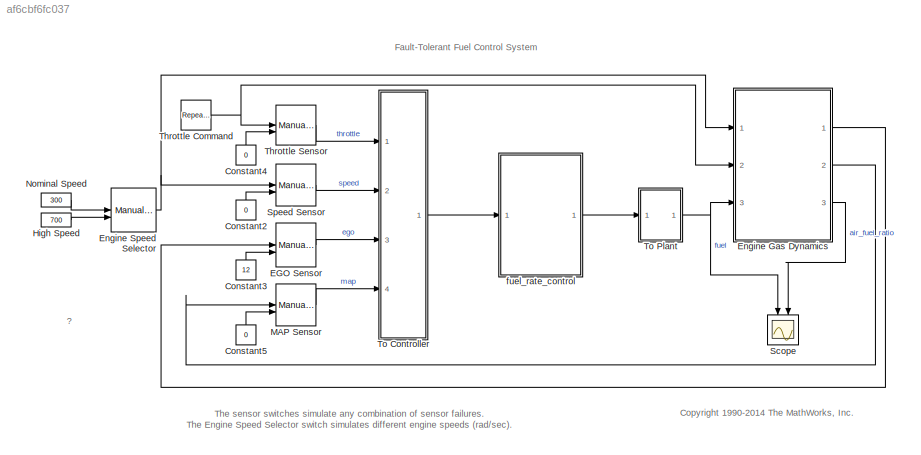
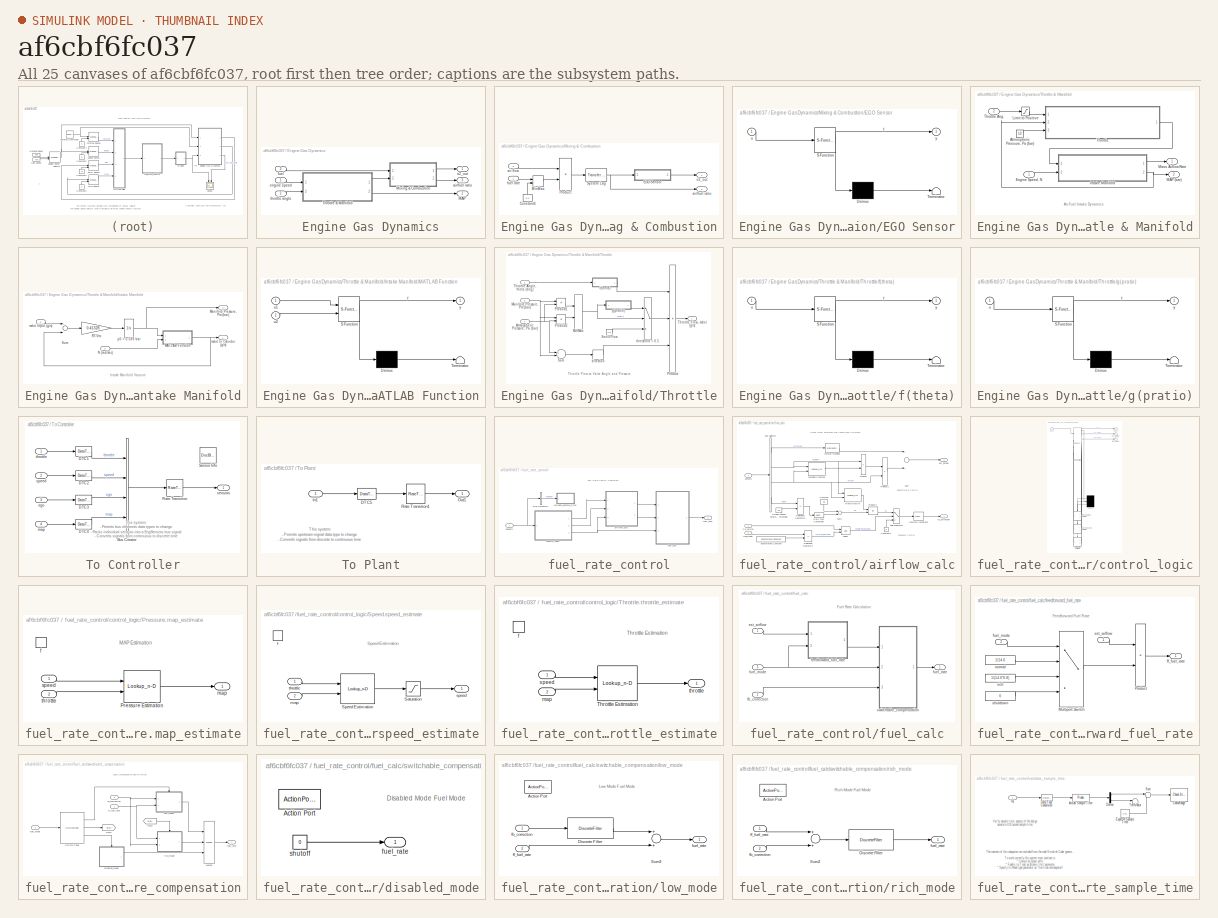
[diagram: thumbnail index - all 25 canvases of the model, root first then tree order]
MODEL slx_af6cbf6fc037
KIND model
CONFIG AbsTol = 1e-6
CONFIG FixedStep = 0.001
CONFIG MaxStep = auto
CONFIG MinStep = auto
CONFIG PostLoadFcn = sldemo_fuelsys_data(bdroot,'initialize_data','orig','float');
CONFIG RelTol = 1e-5
CONFIG SampleTimeConstraint = Unconstrained
CONFIG Solver = ode3
CONFIG SolverMode = SingleTasking
CONFIG SolverName = ode3
CONFIG StartTime = 0.0
CONFIG StopTime = 2000
WORKSPACE source: MAT-file member
WORKSPACE PressEst = [0.806253176324 0.553142316929 0.37151500209 0.277667903103 0.220198954207 0.181288665766 0.153200000489 0.115431020872 0.0913067476324 0.0746519188607 0.0625231108324 0.0533383634277 ... (306 elements, 18x17)]
WORKSPACE PressVect = [0.05 0.1 0.15 0.2 0.25 0.3 0.35 0.4 0.45 0.5 0.55 0.6 ... (19 elements, 1x19)]
BLOCK [Constant] Constant2
  Value = 0
BLOCK [Constant] Constant3
  Value = 12
BLOCK [Constant] Constant4
  Value = 0
BLOCK [Constant] Constant5
  Value = 0
BLOCK [ManualSwitch] EGO Sensor
BLOCK [SubSystem] Engine Gas Dynamics
  Ports = [3, 3]
  RequestExecContextInheritance = off
BLOCK [Outport] Engine Gas Dynamics/MAP
  IconDisplay = Port number
  Port = 2
BLOCK [SubSystem] Engine Gas Dynamics/Mixing & Combustion
  Ports = [2, 2]
  RequestExecContextInheritance = off
BLOCK [Constant] Engine Gas Dynamics/Mixing & Combustion/Constant4
  Value = 0.1
BLOCK [SubSystem] Engine Gas Dynamics/Mixing & Combustion/EGO Sensor
  ErrorFcn = Stateflow.Translate.translate
  PermitHierarchicalResolution = ExplicitOnly
  Ports = [1, 1]
  RequestExecContextInheritance = off
  SFBlockType = MATLAB Function
  TreatAsAtomicUnit = on
BLOCK [Demux] Engine Gas Dynamics/Mixing & Combustion/EGO Sensor/ Demux 
  Outputs = 1
  Ports = [1, 1]
BLOCK [S-Function] Engine Gas Dynamics/Mixing & Combustion/EGO Sensor/ SFunction 
  EnableBusSupport = on
  FunctionName = sf_sfun
  PortCounts = [1 2]
  Ports = [1, 2]
  Tag = Stateflow S-Function fuelsys 5
BLOCK [Terminator] Engine Gas Dynamics/Mixing & Combustion/EGO Sensor/ Terminator 
BLOCK [Inport] Engine Gas Dynamics/Mixing & Combustion/EGO Sensor/u
  IconDisplay = Port number
BLOCK [Outport] Engine Gas Dynamics/Mixing & Combustion/EGO Sensor/y
  IconDisplay = Port number
BLOCK [MinMax] Engine Gas Dynamics/Mixing & Combustion/MinMax
  Function = max
  Inputs = 2
  Ports = [2, 1]
BLOCK [Product] Engine Gas Dynamics/Mixing & Combustion/Product
  Inputs = */
  Ports = [2, 1]
BLOCK [Reference] Engine Gas Dynamics/Mixing & Combustion/System Lag  REF=simulink_extras/Additional
Linear/Transfer Fcn
(with initial outputs)
  D = [1 3]
  N = 3
  Ports = [1, 1]
  SourceBlock = simulink_extras/Additional\nLinear/Transfer Fcn\n(with initial outputs)
  SourceType = Transfer Function with Initial Outputs
  U0 = 1/14.6
  Y0 = 1/14.6
BLOCK [Inport] Engine Gas Dynamics/Mixing & Combustion/air flow
  IconDisplay = Port number
  Port = 2
BLOCK [Outport] Engine Gas Dynamics/Mixing & Combustion/air//fuel ratio
  IconDisplay = Port number
  Port = 2
BLOCK [Inport] Engine Gas Dynamics/Mixing & Combustion/fuel rate
  IconDisplay = Port number
BLOCK [Outport] Engine Gas Dynamics/Mixing & Combustion/o2_out
  IconDisplay = Port number
BLOCK [SubSystem] Engine Gas Dynamics/Throttle & Manifold
  Ports = [2, 2]
  RequestExecContextInheritance = off
BLOCK [Constant] Engine Gas Dynamics/Throttle & Manifold/Atmospheric Pressure, Pa (bar)
  Value = 1.0
BLOCK [Inport] Engine Gas Dynamics/Throttle & Manifold/Engine Speed, N
  IconDisplay = Port number
BLOCK [SubSystem] Engine Gas Dynamics/Throttle & Manifold/Intake Manifold
  Ports = [2, 2]
  RequestExecContextInheritance = off
BLOCK [SubSystem] Engine Gas Dynamics/Throttle & Manifold/Intake Manifold/MATLAB Function
  ErrorFcn = Stateflow.Translate.translate
  PermitHierarchicalResolution = ExplicitOnly
  Ports = [2, 1]
  RequestExecContextInheritance = off
  SFBlockType = MATLAB Function
  TreatAsAtomicUnit = on
BLOCK [Demux] Engine Gas Dynamics/Throttle & Manifold/Intake Manifold/MATLAB Function/ Demux 
  Outputs = 1
  Ports = [1, 1]
BLOCK [S-Function] Engine Gas Dynamics/Throttle & Manifold/Intake Manifold/MATLAB Function/ SFunction 
  EnableBusSupport = on
  FunctionName = sf_sfun
  PortCounts = [2 2]
  Ports = [2, 2]
  Tag = Stateflow S-Function fuelsys 4
BLOCK [Terminator] Engine Gas Dynamics/Throttle & Manifold/Intake Manifold/MATLAB Function/ Terminator 
BLOCK [Inport] Engine Gas Dynamics/Throttle & Manifold/Intake Manifold/MATLAB Function/u1
  IconDisplay = Port number
BLOCK [Inport] Engine Gas Dynamics/Throttle & Manifold/Intake Manifold/MATLAB Function/u2
  IconDisplay = Port number
  Port = 2
BLOCK [Outport] Engine Gas Dynamics/Throttle & Manifold/Intake Manifold/MATLAB Function/y
  IconDisplay = Port number
BLOCK [Outport] Engine Gas Dynamics/Throttle & Manifold/Intake Manifold/Manifold Pressure, Pm (bar)
  IconDisplay = Port number
  Port = 2
BLOCK [Inport] Engine Gas Dynamics/Throttle & Manifold/Intake Manifold/N (rad//sec)
  IconDisplay = Port number
  Port = 2
BLOCK [Gain] Engine Gas Dynamics/Throttle & Manifold/Intake Manifold/RT//Vm
  Gain = 0.41328
BLOCK [Sum] Engine Gas Dynamics/Throttle & Manifold/Intake Manifold/Sum
  Inputs = +-
  Ports = [2, 1]
BLOCK [Inport] Engine Gas Dynamics/Throttle & Manifold/Intake Manifold/mdot Input (g//s)
  IconDisplay = Port number
BLOCK [Outport] Engine Gas Dynamics/Throttle & Manifold/Intake Manifold/mdot to Cylinder (g//s)
  IconDisplay = Port number
BLOCK [Integrator] Engine Gas Dynamics/Throttle & Manifold/Intake Manifold/p0 = 0.589 bar
  InitialCondition = .589
  Ports = [1, 1]
BLOCK [Saturate] Engine Gas Dynamics/Throttle & Manifold/Limit to Positive
  InputPortMap = u0
  LowerLimit = 0
  Ports = [1, 1]
  UpperLimit = inf
BLOCK [Outport] Engine Gas Dynamics/Throttle & Manifold/MAP (bar)
  IconDisplay = Port number
  Port = 2
BLOCK [Outport] Engine Gas Dynamics/Throttle & Manifold/Mass Airflow Rate
  IconDisplay = Port number
BLOCK [SubSystem] Engine Gas Dynamics/Throttle & Manifold/Throttle
  Ports = [3, 1]
  RequestExecContextInheritance = off
BLOCK [Inport] Engine Gas Dynamics/Throttle & Manifold/Throttle Ang.
  IconDisplay = Port number
  Port = 2
BLOCK [Inport] Engine Gas Dynamics/Throttle & Manifold/Throttle/Atmospheric Pressure, Pa (bar) 
  IconDisplay = Port number
  Port = 3
BLOCK [Inport] Engine Gas Dynamics/Throttle & Manifold/Throttle/Manifold Pressure, Pm (bar)
  IconDisplay = Port number
  Port = 2
BLOCK [MinMax] Engine Gas Dynamics/Throttle & Manifold/Throttle/MinMax
  Inputs = 2
  Ports = [2, 1]
BLOCK [Product] Engine Gas Dynamics/Throttle & Manifold/Throttle/Product
  Inputs = 3
  Ports = [3, 1]
BLOCK [Product] Engine Gas Dynamics/Throttle & Manifold/Throttle/Product1
  Inputs = */
  Ports = [2, 1]
BLOCK [Product] Engine Gas Dynamics/Throttle & Manifold/Throttle/Product2
  Inputs = /*
  Ports = [2, 1]
BLOCK [Constant] Engine Gas Dynamics/Throttle & Manifold/Throttle/Sonic Flow 
  Value = 1.0
BLOCK [Sum] Engine Gas Dynamics/Throttle & Manifold/Throttle/Sum
  Inputs = +-
  Ports = [2, 1]
BLOCK [Inport] Engine Gas Dynamics/Throttle & Manifold/Throttle/Throttle Angle, theta (deg)
  IconDisplay = Port number
BLOCK [Outport] Engine Gas Dynamics/Throttle & Manifold/Throttle/Throttle Flow, mdot (g//s)
  IconDisplay = Port number
BLOCK [Signum] Engine Gas Dynamics/Throttle & Manifold/Throttle/direction
BLOCK [SubSystem] Engine Gas Dynamics/Throttle & Manifold/Throttle/f(theta)
  ErrorFcn = Stateflow.Translate.translate
  PermitHierarchicalResolution = ExplicitOnly
  Ports = [1, 1]
  RequestExecContextInheritance = off
  SFBlockType = MATLAB Function
  TreatAsAtomicUnit = on
BLOCK [Demux] Engine Gas Dynamics/Throttle & Manifold/Throttle/f(theta)/ Demux 
  Outputs = 1
  Ports = [1, 1]
BLOCK [S-Function] Engine Gas Dynamics/Throttle & Manifold/Throttle/f(theta)/ SFunction 
  EnableBusSupport = on
  FunctionName = sf_sfun
  PortCounts = [1 2]
  Ports = [1, 2]
  Tag = Stateflow S-Function fuelsys 2
BLOCK [Terminator] Engine Gas Dynamics/Throttle & Manifold/Throttle/f(theta)/ Terminator 
BLOCK [Inport] Engine Gas Dynamics/Throttle & Manifold/Throttle/f(theta)/u
  IconDisplay = Port number
BLOCK [Outport] Engine Gas Dynamics/Throttle & Manifold/Throttle/f(theta)/y
  IconDisplay = Port number
BLOCK [SubSystem] Engine Gas Dynamics/Throttle & Manifold/Throttle/g(pratio)
  ErrorFcn = Stateflow.Translate.translate
  PermitHierarchicalResolution = ExplicitOnly
  Ports = [1, 1]
  RequestExecContextInheritance = off
  SFBlockType = MATLAB Function
  TreatAsAtomicUnit = on
BLOCK [Demux] Engine Gas Dynamics/Throttle & Manifold/Throttle/g(pratio)/ Demux 
  Outputs = 1
  Ports = [1, 1]
BLOCK [S-Function] Engine Gas Dynamics/Throttle & Manifold/Throttle/g(pratio)/ SFunction 
  EnableBusSupport = on
  FunctionName = sf_sfun
  PortCounts = [1 2]
  Ports = [1, 2]
  Tag = Stateflow S-Function fuelsys 3
BLOCK [Terminator] Engine Gas Dynamics/Throttle & Manifold/Throttle/g(pratio)/ Terminator 
BLOCK [Inport] Engine Gas Dynamics/Throttle & Manifold/Throttle/g(pratio)/u
  IconDisplay = Port number
BLOCK [Outport] Engine Gas Dynamics/Throttle & Manifold/Throttle/g(pratio)/y
  IconDisplay = Port number
BLOCK [Switch] Engine Gas Dynamics/Throttle & Manifold/Throttle/threshold = 0.5
  Threshold = 0.5
BLOCK [Outport] Engine Gas Dynamics/air//fuel ratio
  IconDisplay = Port number
  Port = 3
BLOCK [Inport] Engine Gas Dynamics/engine speed
  IconDisplay = Port number
BLOCK [Inport] Engine Gas Dynamics/fuel
  IconDisplay = Port number
  Port = 3
BLOCK [Outport] Engine Gas Dynamics/o2_out
  IconDisplay = Port number
BLOCK [Inport] Engine Gas Dynamics/throttle angle
  IconDisplay = Port number
  Port = 2
BLOCK [ManualSwitch] Engine Speed Selector
BLOCK [Constant] High Speed
  Value = 700
BLOCK [ManualSwitch] MAP Sensor
BLOCK [Constant] Nominal Speed
  Value = 300
BLOCK [Scope] Scope
  DataFormat = StructureWithTime
  Floating = off
  LimitDataPoints = off
  NumInputPorts = 2
  Ports = [2]
  TickLabels = on
  TimeRange = 8
  YMax = 2.25~16
  YMin = 0.75~11
BLOCK [ManualSwitch] Speed Sensor
BLOCK [Reference] Throttle Command  REF=simulink/Sources/Repeating
Sequence
  Ports = [0, 1]
  SourceBlock = simulink/Sources/Repeating\nSequence
  SourceType = Repeating table
  rep_seq_t = [0 2 4]
  rep_seq_y = [10 20 10]
BLOCK [ManualSwitch] Throttle Sensor
BLOCK [SubSystem] To Controller
  Ports = [4, 1]
  RequestExecContextInheritance = off
BLOCK [BusCreator] To Controller/Bus Creator
  DisplayOption = bar
  NonVirtualBus = on
  OutDataTypeStr = Bus: EngSensors
  Ports = [4, 1]
BLOCK [DataTypeConversion] To Controller/DTC1
  RndMeth = Floor
  SampleTime = [0 1]
  SaturateOnIntegerOverflow = off
BLOCK [DataTypeConversion] To Controller/DTC2
  RndMeth = Floor
  SampleTime = [0 1]
  SaturateOnIntegerOverflow = off
BLOCK [DataTypeConversion] To Controller/DTC3
  RndMeth = Floor
  SampleTime = [0 1]
  SaturateOnIntegerOverflow = off
BLOCK [DataTypeConversion] To Controller/DTC4
  RndMeth = Floor
  SampleTime = [0 1]
  SaturateOnIntegerOverflow = off
BLOCK [RateTransition] To Controller/Rate Transition
  OutPortSampleTime = 0.01
BLOCK [Reference] To Controller/Sensor Info  REF=simulink/Model-Wide
Utilities/DocBlock
  DocumentType = Text
  Ports = []
  SourceBlock = simulink/Model-Wide\nUtilities/DocBlock
  SourceType = DocBlock
  UserDataPersistent = on
BLOCK [Inport] To Controller/ego
  IconDisplay = Port number
  Port = 3
BLOCK [Inport] To Controller/map
  IconDisplay = Port number
  Port = 4
BLOCK [Outport] To Controller/sensors
  IconDisplay = Port number
BLOCK [Inport] To Controller/speed
  IconDisplay = Port number
  Port = 2
BLOCK [Inport] To Controller/throttle
  IconDisplay = Port number
BLOCK [SubSystem] To Plant
  Ports = [1, 1]
  RequestExecContextInheritance = off
BLOCK [DataTypeConversion] To Plant/DTC5
  RndMeth = Floor
  SaturateOnIntegerOverflow = off
BLOCK [Inport] To Plant/In1
  IconDisplay = Port number
BLOCK [Outport] To Plant/Out1
  IconDisplay = Port number
BLOCK [RateTransition] To Plant/Rate Transition1
  Integrity = off
  OutPortSampleTime = 0
  X0 = 1.6
BLOCK [SubSystem] fuel_rate_control
  Ports = [1, 1]
  RequestExecContextInheritance = off
  Tag = FuelRateControl
  TreatAsAtomicUnit = on
BLOCK [BusSelector] fuel_rate_control/Bus Selector1
  OutputSignals = speed
  Ports = [1, 1]
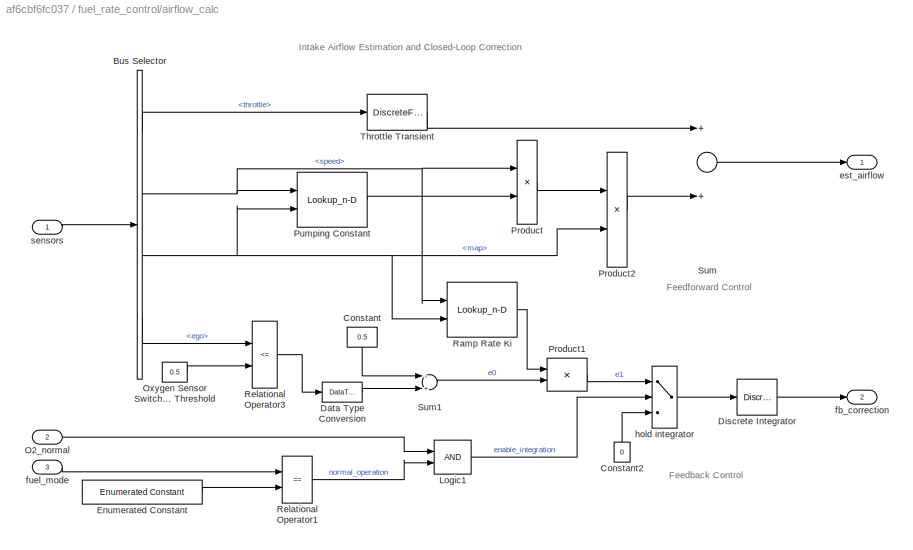
BLOCK [SubSystem] fuel_rate_control/airflow_calc
  Ports = [3, 2]
  RequestExecContextInheritance = off
BLOCK [BusSelector] fuel_rate_control/airflow_calc/Bus Selector
  OutputSignals = throttle,speed,map,ego
  Ports = [1, 4]
BLOCK [Constant] fuel_rate_control/airflow_calc/Constant
  OutDataTypeStr = s16En7
  Value = 0.5
BLOCK [Constant] fuel_rate_control/airflow_calc/Constant2
  OutDataTypeStr = uint8
  Value = 0
BLOCK [DataTypeConversion] fuel_rate_control/airflow_calc/Data Type Conversion
  OutDataTypeStr = s16En7
  RndMeth = Simplest
  SaturateOnIntegerOverflow = off
BLOCK [DiscreteIntegrator] fuel_rate_control/airflow_calc/Discrete Integrator
  InitialConditionSetting = State (most efficient)
  OutDataTypeStr = s16En15
  Ports = [1, 1]
  RndMeth = Simplest
  SampleTime = -1
BLOCK [Reference] fuel_rate_control/airflow_calc/Enumerated Constant  REF=simulink/Sources/Enumerated
Constant
  OutDataTypeStr = Enum: sld_FuelModes
  Ports = [0, 1]
  SampleTime = .01
  SourceBlock = simulink/Sources/Enumerated\nConstant
  SourceType = Enumerated Constant
  Value = sld_FuelModes.LOW
BLOCK [Logic] fuel_rate_control/airflow_calc/Logic1
  AllPortsSameDT = off
  IconShape = distinctive
  OutDataTypeStr = boolean
  Ports = [2, 1]
BLOCK [Inport] fuel_rate_control/airflow_calc/O2_normal
  IconDisplay = Port number
  Port = 2
BLOCK [Constant] fuel_rate_control/airflow_calc/Oxygen Sensor Switching Threshold
  OutDataTypeStr = s16En7
  Value = 0.5
BLOCK [Product] fuel_rate_control/airflow_calc/Product
  InputSameDT = off
  OutDataTypeStr = s16En7
  Ports = [2, 1]
  RndMeth = Simplest
  SaturateOnIntegerOverflow = off
BLOCK [Product] fuel_rate_control/airflow_calc/Product1
  InputSameDT = off
  OutDataTypeStr = s16En15
  Ports = [2, 1]
  RndMeth = Simplest
  SaturateOnIntegerOverflow = off
BLOCK [Product] fuel_rate_control/airflow_calc/Product2
  InputSameDT = off
  OutDataTypeStr = s16En7
  Ports = [2, 1]
  RndMeth = Simplest
  SaturateOnIntegerOverflow = off
BLOCK [Lookup_n-D] fuel_rate_control/airflow_calc/Pumping Constant
  BreakpointsForDimension1 = SpeedVect
  BreakpointsForDimension2 = PressVect
  ExtrapMethod = Clip
  IndexSearchMethod = Linear search
  InputSameDT = off
  OutDataTypeStr = s16En15
  Ports = [2, 1]
  RndMeth = Simplest
  Table = PumpCon
  UseLastTableValue = on
BLOCK [Lookup_n-D] fuel_rate_control/airflow_calc/Ramp Rate Ki
  BreakpointsForDimension1 = RampRateKiX
  BreakpointsForDimension2 = RampRateKiY
  ExtrapMethod = Clip
  IndexSearchMethod = Linear search
  InputSameDT = off
  OutDataTypeStr = s16En15
  Ports = [2, 1]
  RndMeth = Simplest
  Table = RampRateKiZ
  UseLastTableValue = on
BLOCK [RelationalOperator] fuel_rate_control/airflow_calc/Relational Operator1
  Operator = ==
  OutDataTypeStr = boolean
  Ports = [2, 1]
BLOCK [RelationalOperator] fuel_rate_control/airflow_calc/Relational Operator3
  InputSameDT = off
  Operator = <=
  OutDataTypeStr = boolean
  Ports = [2, 1]
BLOCK [Sum] fuel_rate_control/airflow_calc/Sum
  InputSameDT = off
  Inputs = 2
  OutDataTypeStr = s16En7
  Ports = [2, 1]
  RndMeth = Simplest
  SaturateOnIntegerOverflow = off
BLOCK [Sum] fuel_rate_control/airflow_calc/Sum1
  InputSameDT = off
  Inputs = -+
  OutDataTypeStr = s16En15
  Ports = [2, 1]
  RndMeth = Simplest
  SaturateOnIntegerOverflow = off
BLOCK [DiscreteFilter] fuel_rate_control/airflow_calc/Throttle Transient
  Denominator = [1 -.8]
  InputPortMap = u0
  Numerator = [.01 -.01]
  OutDataTypeStr = s16En7
  Ports = [1, 1]
  RndMeth = Simplest
  a0EqualsOne = on
BLOCK [Outport] fuel_rate_control/airflow_calc/est_airflow
  IconDisplay = Port number
BLOCK [Outport] fuel_rate_control/airflow_calc/fb_correction
  IconDisplay = Port number
  Port = 2
BLOCK [Inport] fuel_rate_control/airflow_calc/fuel_mode
  IconDisplay = Port number
  Port = 3
BLOCK [Switch] fuel_rate_control/airflow_calc/hold integrator
  Criteria = u2 ~= 0
  InputSameDT = off
  OutDataTypeStr = s16En15
  RndMeth = Simplest
  SaturateOnIntegerOverflow = off
  Threshold = 1
BLOCK [Inport] fuel_rate_control/airflow_calc/sensors
  IconDisplay = Port number
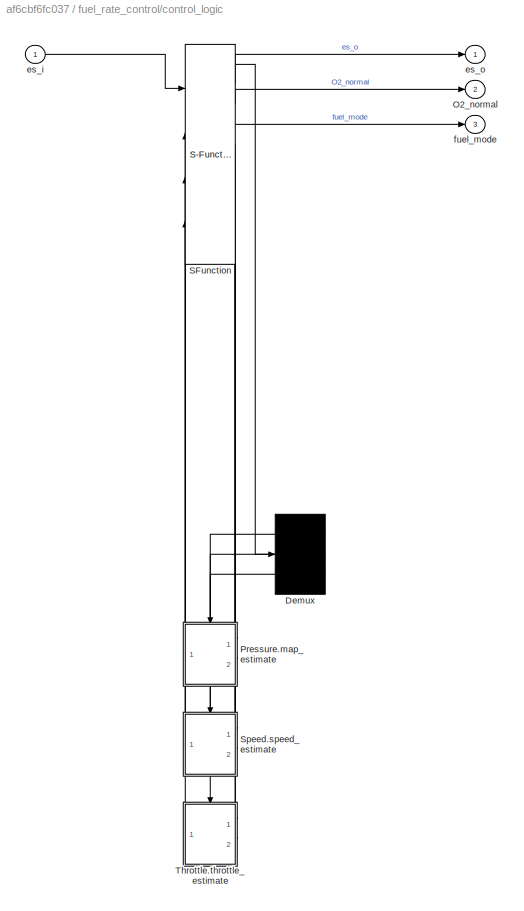
BLOCK [SubSystem] fuel_rate_control/control_logic
  Description = Stateflow diagram to determine control system operating mode
  ErrorFcn = Stateflow.Translate.translate
  PermitHierarchicalResolution = ExplicitOnly
  Ports = [1, 3]
  RequestExecContextInheritance = off
  SFBlockType = Chart
  TreatAsAtomicUnit = on
BLOCK [Demux] fuel_rate_control/control_logic/ Demux 
  Outputs = 3
  Ports = [1, 3]
BLOCK [Outport] fuel_rate_control/control_logic/ O2_normal
  IconDisplay = Port number
  Port = 2
BLOCK [S-Function] fuel_rate_control/control_logic/ SFunction 
  EnableBusSupport = on
  FunctionName = sf_sfun
  Parameters = hys,max_ego,max_press,max_speed,max_throt,min_press,min_throt,zero_thresh
  PortCounts = [4 10]
  Ports = [4, 10]
  Tag = Stateflow S-Function fuelsys 1
BLOCK [SubSystem] fuel_rate_control/control_logic/Pressure.map_estimate
  Ports = [2, 1, 0, 1]
  PreDeleteFcn = Stateflow.SLINSF.SimulinkMan.removePreDeleteFcn
  RequestExecContextInheritance = off
  UndoDeleteFcn = Stateflow.SLINSF.SimulinkMan.restorePreDeleteFcn
BLOCK [Lookup_n-D] fuel_rate_control/control_logic/Pressure.map_estimate/Pressure Estimation
  BreakpointsForDimension1 = SpeedVect
  BreakpointsForDimension2 = ThrotVect
  ExtrapMethod = Clip
  IndexSearchMethod = Linear search
  InputSameDT = off
  OutDataTypeStr = u8En7
  Ports = [2, 1]
  RndMeth = Simplest
  Table = PressEst
  UseLastTableValue = on
BLOCK [TriggerPort] fuel_rate_control/control_logic/Pressure.map_estimate/f
  CopyFcn = Stateflow.SLINSF.SimulinkMan.removeBlockPreDeleteFcn
  Ports = []
  PreDeleteFcn = Stateflow.SLINSF.SimulinkMan.unsafePredeleteFcn
  StatesWhenEnabling = held
  TriggerType = function-call
BLOCK [Outport] fuel_rate_control/control_logic/Pressure.map_estimate/map
  IconDisplay = Port number
BLOCK [Inport] fuel_rate_control/control_logic/Pressure.map_estimate/speed
  IconDisplay = Port number
  OutDataTypeStr = s16En3
BLOCK [Inport] fuel_rate_control/control_logic/Pressure.map_estimate/throttle
  IconDisplay = Port number
  OutDataTypeStr = s16En3
  Port = 2
BLOCK [SubSystem] fuel_rate_control/control_logic/Speed.speed_estimate
  Ports = [2, 1, 0, 1]
  PreDeleteFcn = Stateflow.SLINSF.SimulinkMan.removePreDeleteFcn
  RequestExecContextInheritance = off
  UndoDeleteFcn = Stateflow.SLINSF.SimulinkMan.restorePreDeleteFcn
BLOCK [Saturate] fuel_rate_control/control_logic/Speed.speed_estimate/Saturation
  InputPortMap = u0
  LowerLimit = 0
  OutDataTypeStr = s16En3
  Ports = [1, 1]
  UpperLimit = max_speed
BLOCK [Lookup_n-D] fuel_rate_control/control_logic/Speed.speed_estimate/Speed Estimation
  BreakpointsForDimension1 = ThrotVect
  BreakpointsForDimension2 = PressVect
  ExtrapMethod = Clip
  IndexSearchMethod = Linear search
  InputSameDT = off
  OutDataTypeStr = s16En3
  Ports = [2, 1]
  RndMeth = Simplest
  Table = SpeedEst
  UseLastTableValue = on
BLOCK [TriggerPort] fuel_rate_control/control_logic/Speed.speed_estimate/f
  CopyFcn = Stateflow.SLINSF.SimulinkMan.removeBlockPreDeleteFcn
  Ports = []
  PreDeleteFcn = Stateflow.SLINSF.SimulinkMan.unsafePredeleteFcn
  StatesWhenEnabling = held
  TriggerType = function-call
BLOCK [Inport] fuel_rate_control/control_logic/Speed.speed_estimate/map
  IconDisplay = Port number
  OutDataTypeStr = u8En7
  Port = 2
BLOCK [Outport] fuel_rate_control/control_logic/Speed.speed_estimate/speed
  IconDisplay = Port number
BLOCK [Inport] fuel_rate_control/control_logic/Speed.speed_estimate/throttle
  IconDisplay = Port number
  OutDataTypeStr = s16En3
BLOCK [SubSystem] fuel_rate_control/control_logic/Throttle.throttle_estimate
  Ports = [2, 1, 0, 1]
  PreDeleteFcn = Stateflow.SLINSF.SimulinkMan.removePreDeleteFcn
  RequestExecContextInheritance = off
  UndoDeleteFcn = Stateflow.SLINSF.SimulinkMan.restorePreDeleteFcn
BLOCK [Lookup_n-D] fuel_rate_control/control_logic/Throttle.throttle_estimate/Throttle Estimation
  BreakpointsForDimension1 = SpeedVect
  BreakpointsForDimension2 = PressVect
  ExtrapMethod = Clip
  IndexSearchMethod = Linear search
  InputSameDT = off
  OutDataTypeStr = s16En7
  Ports = [2, 1]
  RndMeth = Simplest
  Table = ThrotEst
  UseLastTableValue = on
BLOCK [TriggerPort] fuel_rate_control/control_logic/Throttle.throttle_estimate/f
  CopyFcn = Stateflow.SLINSF.SimulinkMan.removeBlockPreDeleteFcn
  Ports = []
  PreDeleteFcn = Stateflow.SLINSF.SimulinkMan.unsafePredeleteFcn
  StatesWhenEnabling = held
  TriggerType = function-call
BLOCK [Inport] fuel_rate_control/control_logic/Throttle.throttle_estimate/map
  IconDisplay = Port number
  OutDataTypeStr = u8En7
  Port = 2
BLOCK [Inport] fuel_rate_control/control_logic/Throttle.throttle_estimate/speed
  IconDisplay = Port number
  OutDataTypeStr = s16En3
BLOCK [Outport] fuel_rate_control/control_logic/Throttle.throttle_estimate/throttle
  IconDisplay = Port number
BLOCK [Inport] fuel_rate_control/control_logic/es_i
  IconDisplay = Port number
BLOCK [Outport] fuel_rate_control/control_logic/es_o
  IconDisplay = Port number
BLOCK [Outport] fuel_rate_control/control_logic/fuel_mode
  IconDisplay = Port number
  Port = 3
BLOCK [SubSystem] fuel_rate_control/fuel_calc
  Ports = [3, 1]
  RequestExecContextInheritance = off
BLOCK [Inport] fuel_rate_control/fuel_calc/est_airflow
  IconDisplay = Port number
BLOCK [Inport] fuel_rate_control/fuel_calc/fb_correction
  IconDisplay = Port number
  Port = 2
BLOCK [SubSystem] fuel_rate_control/fuel_calc/feedforward_fuel_rate
  Ports = [2, 1]
  RequestExecContextInheritance = off
BLOCK [MultiPortSwitch] fuel_rate_control/fuel_calc/feedforward_fuel_rate/Multiport Switch
  DataPortIndices = {sld_FuelModes.LOW, sld_FuelModes.RICH, sld_FuelModes.DISABLED}
  DataPortOrder = Specify indices
  InputSameDT = off
  OutDataTypeStr = s16En7
  Ports = [4, 1]
  RndMeth = Simplest
  SaturateOnIntegerOverflow = off
BLOCK [Product] fuel_rate_control/fuel_calc/feedforward_fuel_rate/Product
  InputSameDT = off
  OutDataTypeStr = s16En7
  Ports = [2, 1]
  RndMeth = Simplest
  SaturateOnIntegerOverflow = off
BLOCK [Inport] fuel_rate_control/fuel_calc/feedforward_fuel_rate/est_airflow
  IconDisplay = Port number
BLOCK [Outport] fuel_rate_control/fuel_calc/feedforward_fuel_rate/ff_fuel_rate
  IconDisplay = Port number
BLOCK [Inport] fuel_rate_control/fuel_calc/feedforward_fuel_rate/fuel_mode
  IconDisplay = Port number
  Port = 2
BLOCK [Constant] fuel_rate_control/fuel_calc/feedforward_fuel_rate/normal
  OutDataTypeStr = s16En7
  Value = 1/14.6
BLOCK [Constant] fuel_rate_control/fuel_calc/feedforward_fuel_rate/rich
  OutDataTypeStr = s16En7
  Value = 1/(14.6*0.8)
BLOCK [Constant] fuel_rate_control/fuel_calc/feedforward_fuel_rate/shutdown
  OutDataTypeStr = s16En7
  Value = 0
BLOCK [Inport] fuel_rate_control/fuel_calc/fuel_mode
  IconDisplay = Port number
  Port = 3
BLOCK [Outport] fuel_rate_control/fuel_calc/fuel_rate
  IconDisplay = Port number
BLOCK [SubSystem] fuel_rate_control/fuel_calc/switchable_compensation
  Ports = [3, 1]
  RequestExecContextInheritance = off
BLOCK [From] fuel_rate_control/fuel_calc/switchable_compensation/From
  GotoTag = RICH
BLOCK [Goto] fuel_rate_control/fuel_calc/switchable_compensation/Goto
  GotoTag = RICH
BLOCK [Merge] fuel_rate_control/fuel_calc/switchable_compensation/Merge
  Inputs = 3
  Ports = [3, 1]
BLOCK [SwitchCase] fuel_rate_control/fuel_calc/switchable_compensation/Switch Case
  CaseConditions = {sld_FuelModes.LOW, sld_FuelModes.RICH}
  Ports = [1, 3]
BLOCK [SubSystem] fuel_rate_control/fuel_calc/switchable_compensation/disabled_mode
  Ports = [0, 1, 0, 0, 0, 0, 0, 1]
  RequestExecContextInheritance = off
  TreatAsAtomicUnit = on
BLOCK [ActionPort] fuel_rate_control/fuel_calc/switchable_compensation/disabled_mode/Action Port
  ActionType = default
BLOCK [Outport] fuel_rate_control/fuel_calc/switchable_compensation/disabled_mode/fuel_rate
  IconDisplay = Port number
  InitialOutput = 0
BLOCK [Constant] fuel_rate_control/fuel_calc/switchable_compensation/disabled_mode/shutoff
  OutDataTypeStr = Inherit: Inherit via back propagation
  Value = 0
BLOCK [Inport] fuel_rate_control/fuel_calc/switchable_compensation/fb_correction
  IconDisplay = Port number
  Port = 3
BLOCK [Inport] fuel_rate_control/fuel_calc/switchable_compensation/ff_fuel_rate
  IconDisplay = Port number
BLOCK [Inport] fuel_rate_control/fuel_calc/switchable_compensation/fuel_mode
  IconDisplay = Port number
  Port = 2
BLOCK [Outport] fuel_rate_control/fuel_calc/switchable_compensation/fuel_rate
  IconDisplay = Port number
BLOCK [SubSystem] fuel_rate_control/fuel_calc/switchable_compensation/low_mode
  Ports = [2, 1, 0, 0, 0, 0, 0, 1]
  RequestExecContextInheritance = off
  TreatAsAtomicUnit = on
BLOCK [ActionPort] fuel_rate_control/fuel_calc/switchable_compensation/low_mode/Action Port
  ActionType = case
BLOCK [DiscreteFilter] fuel_rate_control/fuel_calc/switchable_compensation/low_mode/Discrete Filter
  Denominator = [1 -0.7408]
  InputPortMap = u0
  Numerator = [8.7696 -8.5104]
  OutDataTypeStr = Inherit: Same as input
  Ports = [1, 1]
  RndMeth = Simplest
  a0EqualsOne = on
BLOCK [Sum] fuel_rate_control/fuel_calc/switchable_compensation/low_mode/Sum3
  InputSameDT = off
  OutDataTypeStr = s16En7
  Ports = [2, 1]
  RndMeth = Simplest
  SaturateOnIntegerOverflow = off
BLOCK [Inport] fuel_rate_control/fuel_calc/switchable_compensation/low_mode/fb_correction
  IconDisplay = Port number
BLOCK [Inport] fuel_rate_control/fuel_calc/switchable_compensation/low_mode/ff_fuel_rate
  IconDisplay = Port number
  Port = 2
BLOCK [Outport] fuel_rate_control/fuel_calc/switchable_compensation/low_mode/fuel_rate
  IconDisplay = Port number
  InitialOutput = 0
BLOCK [SubSystem] fuel_rate_control/fuel_calc/switchable_compensation/rich_mode
  Ports = [2, 1, 0, 0, 0, 0, 0, 1]
  RequestExecContextInheritance = off
  TreatAsAtomicUnit = on
BLOCK [ActionPort] fuel_rate_control/fuel_calc/switchable_compensation/rich_mode/Action Port
  ActionType = case
BLOCK [DiscreteFilter] fuel_rate_control/fuel_calc/switchable_compensation/rich_mode/Discrete Filter
  Denominator = [1 -0.7408]
  InputPortMap = u0
  Numerator = [0 0.2592]
  OutDataTypeStr = Inherit: Same as input
  Ports = [1, 1]
  RndMeth = Simplest
  a0EqualsOne = on
BLOCK [Sum] fuel_rate_control/fuel_calc/switchable_compensation/rich_mode/Sum2
  InputSameDT = off
  OutDataTypeStr = s16En7
  Ports = [2, 1]
  RndMeth = Simplest
  SaturateOnIntegerOverflow = off
BLOCK [Inport] fuel_rate_control/fuel_calc/switchable_compensation/rich_mode/fb_correction
  IconDisplay = Port number
  Port = 2
BLOCK [Inport] fuel_rate_control/fuel_calc/switchable_compensation/rich_mode/ff_fuel_rate
  IconDisplay = Port number
BLOCK [Outport] fuel_rate_control/fuel_calc/switchable_compensation/rich_mode/fuel_rate
  IconDisplay = Port number
  InitialOutput = 0
BLOCK [Outport] fuel_rate_control/fuel_rate
  IconDisplay = Port number
BLOCK [Inport] fuel_rate_control/sensors
  IconDisplay = Port number
  OutDataTypeStr = Bus: EngSensors
BLOCK [SubSystem] fuel_rate_control/validate_sample_time
  CopyFcn = sldvsubsys('copy');
  DisableCoverage = on
  LoadFcn = sldvsubsys('check')
  OpenFcn = open_system(gcb,'force');
  Ports = [1]
  PreSaveFcn = set_param(gcb,'SimViewingDevice','on');\nsldvsubsys('check');
  RequestExecContextInheritance = off
  SimViewingDevice = on
  Tag = VerificationSubsystem
  TreatAsAtomicUnit = on
BLOCK [Probe] fuel_rate_control/validate_sample_time/Actual Sample Time
  Ports = [1, 1]
  ProbeComplexSignal = off
  ProbeSampleTimeDataType = Same as input
  ProbeWidth = off
BLOCK [Reference] fuel_rate_control/validate_sample_time/CheckRange  REF=simulink/Model
Verification/Check 
Static Range
  Description = -st_range < u < st_range
  Ports = [1]
  SourceBlock = simulink/Model\nVerification/Check \nStatic Range
  SourceType = Checks_SRange
  enabled = on
  export = off
  icon = graphic
  max = st_range
  max_included = off
  min = -st_range
  min_included = off
  stopWhenAssertionFail = on
BLOCK [DataTypeConversion] fuel_rate_control/validate_sample_time/Data Type Conversion
  OutDataTypeStr = s16En15
  RndMeth = Floor
  SaturateOnIntegerOverflow = off
BLOCK [Demux] fuel_rate_control/validate_sample_time/Demux
  DisplayOption = bar
  Outputs = 2
  Ports = [1, 2]
BLOCK [Constant] fuel_rate_control/validate_sample_time/Expected Sample Time
  OutDataTypeStr = s16En15
  Value = 0.01
BLOCK [Inport] fuel_rate_control/validate_sample_time/In1
  IconDisplay = Port number
BLOCK [Sum] fuel_rate_control/validate_sample_time/Sum
  IconShape = round
  InputSameDT = off
  Inputs = |+-
  Ports = [2, 1]
  SaturateOnIntegerOverflow = off
BLOCK [Terminator] fuel_rate_control/validate_sample_time/Terminator
ANNOTATION (root): ?
ANNOTATION (root): <copyright redacted>
ANNOTATION (root): Fault-Tolerant Fuel Control System
ANNOTATION (root): The sensor switches simulate any combination of sensor failures. The Engine Speed Selector switch simulates different engine speeds (rad/sec).
ANNOTATION Engine Gas Dynamics/Throttle & Manifold: Air-Fuel Intake Dynamics
ANNOTATION Engine Gas Dynamics/Throttle & Manifold/Intake Manifold: Intake Manifold Vacuum
ANNOTATION Engine Gas Dynamics/Throttle & Manifold/Throttle: Throttle Flow vs. Valve Angle and Pressure
ANNOTATION To Controller: This system: - Packs individual sensors into a EngSensors bus signal - Permits bus elements data types to change - Converts signals from continuous to discrete time
ANNOTATION To Plant: This system: - Permits upstream signal data type to change - Converts signals from discrete to continuous time
ANNOTATION fuel_rate_control: Fuel Rate Control Subsystem
ANNOTATION fuel_rate_control/airflow_calc: Feedback Control
ANNOTATION fuel_rate_control/airflow_calc: Feedforward Control
ANNOTATION fuel_rate_control/airflow_calc: Intake Airflow Estimation and Closed-Loop Correction
ANNOTATION fuel_rate_control/control_logic/Pressure.map_estimate: MAP Estimation
ANNOTATION fuel_rate_control/control_logic/Speed.speed_estimate: Speed Estimation
ANNOTATION fuel_rate_control/control_logic/Throttle.throttle_estimate: Throttle Estimation
ANNOTATION fuel_rate_control/fuel_calc: Fuel Rate Calculation
ANNOTATION fuel_rate_control/fuel_calc/feedforward_fuel_rate: Feedforward Fuel Rate
ANNOTATION fuel_rate_control/fuel_calc/switchable_compensation: Loop Compensation and Filtering
ANNOTATION fuel_rate_control/fuel_calc/switchable_compensation/disabled_mode: Disabled Mode Fuel Mode
ANNOTATION fuel_rate_control/fuel_calc/switchable_compensation/low_mode: Low Mode Fuel Mode
ANNOTATION fuel_rate_control/fuel_calc/switchable_compensation/rich_mode: Rich Mode Fuel Mode
ANNOTATION fuel_rate_control/validate_sample_time: The contents of this subsystem are excluded from the code Simulink Coder generates. To work correctly this system must continue to * Contain no output ports * Enable its 'Treat as Atomic Unit' parameter * Specify its 'Mask type' parameter as "VerificationSubsystem"
ANNOTATION fuel_rate_control/validate_sample_time: Verify sample time: aspects of the design assume a 0.01 second sample time.
LINE Constant2:1 -> Speed Sensor:2
LINE Constant3:1 -> EGO Sensor:2
LINE Constant4:1 -> Throttle Sensor:2
LINE Constant5:1 -> MAP Sensor:2
LINE EGO Sensor:1 -> To Controller:3
LINE Engine Gas Dynamics/Mixing & Combustion/Constant4:1 -> Engine Gas Dynamics/Mixing & Combustion/MinMax:2
LINE Engine Gas Dynamics/Mixing & Combustion/EGO Sensor:1 -> Engine Gas Dynamics/Mixing & Combustion/o2_out:1
LINE Engine Gas Dynamics/Mixing & Combustion/MinMax:1 -> Engine Gas Dynamics/Mixing & Combustion/Product:2
LINE Engine Gas Dynamics/Mixing & Combustion/Product:1 -> Engine Gas Dynamics/Mixing & Combustion/System Lag:1
NET Engine Gas Dynamics/Mixing & Combustion/System Lag:1 -> Engine Gas Dynamics/Mixing & Combustion/EGO Sensor:1, Engine Gas Dynamics/Mixing & Combustion/air//fuel ratio:1
LINE Engine Gas Dynamics/Mixing & Combustion/air flow:1 -> Engine Gas Dynamics/Mixing & Combustion/Product:1
LINE Engine Gas Dynamics/Mixing & Combustion/fuel rate:1 -> Engine Gas Dynamics/Mixing & Combustion/MinMax:1
LINE Engine Gas Dynamics/Mixing & Combustion:1 -> Engine Gas Dynamics/o2_out:1
LINE Engine Gas Dynamics/Mixing & Combustion:2 -> Engine Gas Dynamics/air//fuel ratio:1
LINE Engine Gas Dynamics/Throttle & Manifold/Atmospheric Pressure, Pa (bar):1 -> Engine Gas Dynamics/Throttle & Manifold/Throttle:3
LINE Engine Gas Dynamics/Throttle & Manifold/Engine Speed, N:1 -> Engine Gas Dynamics/Throttle & Manifold/Intake Manifold:2
NET Engine Gas Dynamics/Throttle & Manifold/Intake Manifold/MATLAB Function:1 -> Engine Gas Dynamics/Throttle & Manifold/Intake Manifold/Sum:2, Engine Gas Dynamics/Throttle & Manifold/Intake Manifold/mdot to Cylinder (g//s):1
LINE Engine Gas Dynamics/Throttle & Manifold/Intake Manifold/N (rad//sec):1 -> Engine Gas Dynamics/Throttle & Manifold/Intake Manifold/MATLAB Function:2
LINE Engine Gas Dynamics/Throttle & Manifold/Intake Manifold/RT//Vm:1 -> Engine Gas Dynamics/Throttle & Manifold/Intake Manifold/p0 = 0.589 bar:1
LINE Engine Gas Dynamics/Throttle & Manifold/Intake Manifold/Sum:1 -> Engine Gas Dynamics/Throttle & Manifold/Intake Manifold/RT//Vm:1
LINE Engine Gas Dynamics/Throttle & Manifold/Intake Manifold/mdot Input (g//s):1 -> Engine Gas Dynamics/Throttle & Manifold/Intake Manifold/Sum:1
NET Engine Gas Dynamics/Throttle & Manifold/Intake Manifold/p0 = 0.589 bar:1 -> Engine Gas Dynamics/Throttle & Manifold/Intake Manifold/MATLAB Function:1, Engine Gas Dynamics/Throttle & Manifold/Intake Manifold/Manifold Pressure, Pm (bar):1
LINE Engine Gas Dynamics/Throttle & Manifold/Intake Manifold:1 -> Engine Gas Dynamics/Throttle & Manifold/Mass Airflow Rate:1
NET Engine Gas Dynamics/Throttle & Manifold/Intake Manifold:2 -> Engine Gas Dynamics/Throttle & Manifold/MAP (bar):1, Engine Gas Dynamics/Throttle & Manifold/Throttle:2
LINE Engine Gas Dynamics/Throttle & Manifold/Limit to Positive:1 -> Engine Gas Dynamics/Throttle & Manifold/Throttle:1
LINE Engine Gas Dynamics/Throttle & Manifold/Throttle Ang.:1 -> Engine Gas Dynamics/Throttle & Manifold/Limit to Positive:1
NET Engine Gas Dynamics/Throttle & Manifold/Throttle/Atmospheric Pressure, Pa (bar) :1 -> Engine Gas Dynamics/Throttle & Manifold/Throttle/Product1:2, Engine Gas Dynamics/Throttle & Manifold/Throttle/Product2:2, Engine Gas Dynamics/Throttle & Manifold/Throttle/Sum:1
NET Engine Gas Dynamics/Throttle & Manifold/Throttle/Manifold Pressure, Pm (bar):1 -> Engine Gas Dynamics/Throttle & Manifold/Throttle/Product1:1, Engine Gas Dynamics/Throttle & Manifold/Throttle/Product2:1, Engine Gas Dynamics/Throttle & Manifold/Throttle/Sum:2
NET Engine Gas Dynamics/Throttle & Manifold/Throttle/MinMax:1 -> Engine Gas Dynamics/Throttle & Manifold/Throttle/g(pratio):1, Engine Gas Dynamics/Throttle & Manifold/Throttle/threshold = 0.5:2
LINE Engine Gas Dynamics/Throttle & Manifold/Throttle/Product1:1 -> Engine Gas Dynamics/Throttle & Manifold/Throttle/MinMax:1
LINE Engine Gas Dynamics/Throttle & Manifold/Throttle/Product2:1 -> Engine Gas Dynamics/Throttle & Manifold/Throttle/MinMax:2
LINE Engine Gas Dynamics/Throttle & Manifold/Throttle/Product:1 -> Engine Gas Dynamics/Throttle & Manifold/Throttle/Throttle Flow, mdot (g//s):1
LINE Engine Gas Dynamics/Throttle & Manifold/Throttle/Sonic Flow :1 -> Engine Gas Dynamics/Throttle & Manifold/Throttle/threshold = 0.5:3
LINE Engine Gas Dynamics/Throttle & Manifold/Throttle/Sum:1 -> Engine Gas Dynamics/Throttle & Manifold/Throttle/direction:1
LINE Engine Gas Dynamics/Throttle & Manifold/Throttle/Throttle Angle, theta (deg):1 -> Engine Gas Dynamics/Throttle & Manifold/Throttle/f(theta):1
LINE Engine Gas Dynamics/Throttle & Manifold/Throttle/direction:1 -> Engine Gas Dynamics/Throttle & Manifold/Throttle/Product:3
LINE Engine Gas Dynamics/Throttle & Manifold/Throttle/f(theta):1 -> Engine Gas Dynamics/Throttle & Manifold/Throttle/Product:1
LINE Engine Gas Dynamics/Throttle & Manifold/Throttle/g(pratio):1 -> Engine Gas Dynamics/Throttle & Manifold/Throttle/threshold = 0.5:1
LINE Engine Gas Dynamics/Throttle & Manifold/Throttle/threshold = 0.5:1 -> Engine Gas Dynamics/Throttle & Manifold/Throttle/Product:2
LINE Engine Gas Dynamics/Throttle & Manifold/Throttle:1 -> Engine Gas Dynamics/Throttle & Manifold/Intake Manifold:1
LINE Engine Gas Dynamics/Throttle & Manifold:1 -> Engine Gas Dynamics/Mixing & Combustion:2
LINE Engine Gas Dynamics/Throttle & Manifold:2 -> Engine Gas Dynamics/MAP:1
LINE Engine Gas Dynamics/engine speed:1 -> Engine Gas Dynamics/Throttle & Manifold:1
LINE Engine Gas Dynamics/fuel:1 -> Engine Gas Dynamics/Mixing & Combustion:1
LINE Engine Gas Dynamics/throttle angle:1 -> Engine Gas Dynamics/Throttle & Manifold:2
LINE Engine Gas Dynamics:1 -> EGO Sensor:1
LINE Engine Gas Dynamics:2 -> MAP Sensor:1
LINE Engine Gas Dynamics:3 -> Scope:2
NET Engine Speed Selector:1 -> Engine Gas Dynamics:1, Speed Sensor:1
LINE High Speed:1 -> Engine Speed Selector:2
LINE MAP Sensor:1 -> To Controller:4
LINE Nominal Speed:1 -> Engine Speed Selector:1
LINE Speed Sensor:1 -> To Controller:2
NET Throttle Command:1 -> Engine Gas Dynamics:2, Throttle Sensor:1
LINE Throttle Sensor:1 -> To Controller:1
LINE To Controller/Bus Creator:1 -> To Controller/Rate Transition:1
LINE To Controller/DTC1:1 -> To Controller/Bus Creator:1
LINE To Controller/DTC2:1 -> To Controller/Bus Creator:2
LINE To Controller/DTC3:1 -> To Controller/Bus Creator:3
LINE To Controller/DTC4:1 -> To Controller/Bus Creator:4
LINE To Controller/Rate Transition:1 -> To Controller/sensors:1
LINE To Controller/ego:1 -> To Controller/DTC3:1
LINE To Controller/map:1 -> To Controller/DTC4:1
LINE To Controller/speed:1 -> To Controller/DTC2:1
LINE To Controller/throttle:1 -> To Controller/DTC1:1
LINE To Controller:1 -> fuel_rate_control:1
LINE To Plant/DTC5:1 -> To Plant/Rate Transition1:1
LINE To Plant/In1:1 -> To Plant/DTC5:1
LINE To Plant/Rate Transition1:1 -> To Plant/Out1:1
NET To Plant:1 -> Engine Gas Dynamics:3, Scope:1
LINE fuel_rate_control/Bus Selector1:1 -> fuel_rate_control/validate_sample_time:1
LINE fuel_rate_control/airflow_calc/Bus Selector:1 -> fuel_rate_control/airflow_calc/Throttle Transient:1
NET fuel_rate_control/airflow_calc/Bus Selector:2 -> fuel_rate_control/airflow_calc/Product:1, fuel_rate_control/airflow_calc/Pumping Constant:1, fuel_rate_control/airflow_calc/Ramp Rate Ki:1
NET fuel_rate_control/airflow_calc/Bus Selector:3 -> fuel_rate_control/airflow_calc/Product2:2, fuel_rate_control/airflow_calc/Pumping Constant:2, fuel_rate_control/airflow_calc/Ramp Rate Ki:2
LINE fuel_rate_control/airflow_calc/Bus Selector:4 -> fuel_rate_control/airflow_calc/Relational Operator3:1
LINE fuel_rate_control/airflow_calc/Constant2:1 -> fuel_rate_control/airflow_calc/hold integrator:3
LINE fuel_rate_control/airflow_calc/Constant:1 -> fuel_rate_control/airflow_calc/Sum1:1
LINE fuel_rate_control/airflow_calc/Data Type Conversion:1 -> fuel_rate_control/airflow_calc/Sum1:2
LINE fuel_rate_control/airflow_calc/Discrete Integrator:1 -> fuel_rate_control/airflow_calc/fb_correction:1
LINE fuel_rate_control/airflow_calc/Enumerated Constant:1 -> fuel_rate_control/airflow_calc/Relational Operator1:2
LINE fuel_rate_control/airflow_calc/Logic1:1 -> fuel_rate_control/airflow_calc/hold integrator:2
LINE fuel_rate_control/airflow_calc/O2_normal:1 -> fuel_rate_control/airflow_calc/Logic1:1
LINE fuel_rate_control/airflow_calc/Oxygen Sensor Switching Threshold:1 -> fuel_rate_control/airflow_calc/Relational Operator3:2
LINE fuel_rate_control/airflow_calc/Product1:1 -> fuel_rate_control/airflow_calc/hold integrator:1
LINE fuel_rate_control/airflow_calc/Product2:1 -> fuel_rate_control/airflow_calc/Sum:2
LINE fuel_rate_control/airflow_calc/Product:1 -> fuel_rate_control/airflow_calc/Product2:1
LINE fuel_rate_control/airflow_calc/Pumping Constant:1 -> fuel_rate_control/airflow_calc/Product:2
LINE fuel_rate_control/airflow_calc/Ramp Rate Ki:1 -> fuel_rate_control/airflow_calc/Product1:1
LINE fuel_rate_control/airflow_calc/Relational Operator1:1 -> fuel_rate_control/airflow_calc/Logic1:2
LINE fuel_rate_control/airflow_calc/Relational Operator3:1 -> fuel_rate_control/airflow_calc/Data Type Conversion:1
LINE fuel_rate_control/airflow_calc/Sum1:1 -> fuel_rate_control/airflow_calc/Product1:2
LINE fuel_rate_control/airflow_calc/Sum:1 -> fuel_rate_control/airflow_calc/est_airflow:1
LINE fuel_rate_control/airflow_calc/Throttle Transient:1 -> fuel_rate_control/airflow_calc/Sum:1
LINE fuel_rate_control/airflow_calc/fuel_mode:1 -> fuel_rate_control/airflow_calc/Relational Operator1:1
LINE fuel_rate_control/airflow_calc/hold integrator:1 -> fuel_rate_control/airflow_calc/Discrete Integrator:1
LINE fuel_rate_control/airflow_calc/sensors:1 -> fuel_rate_control/airflow_calc/Bus Selector:1
LINE fuel_rate_control/airflow_calc:1 -> fuel_rate_control/fuel_calc:1
LINE fuel_rate_control/airflow_calc:2 -> fuel_rate_control/fuel_calc:2
LINE fuel_rate_control/control_logic:1 -> fuel_rate_control/airflow_calc:1
LINE fuel_rate_control/control_logic:2 -> fuel_rate_control/airflow_calc:2
NET fuel_rate_control/control_logic:3 -> fuel_rate_control/airflow_calc:3, fuel_rate_control/fuel_calc:3
LINE fuel_rate_control/fuel_calc/est_airflow:1 -> fuel_rate_control/fuel_calc/feedforward_fuel_rate:1
LINE fuel_rate_control/fuel_calc/fb_correction:1 -> fuel_rate_control/fuel_calc/switchable_compensation:3
LINE fuel_rate_control/fuel_calc/feedforward_fuel_rate/Multiport Switch:1 -> fuel_rate_control/fuel_calc/feedforward_fuel_rate/Product:2
LINE fuel_rate_control/fuel_calc/feedforward_fuel_rate/Product:1 -> fuel_rate_control/fuel_calc/feedforward_fuel_rate/ff_fuel_rate:1
LINE fuel_rate_control/fuel_calc/feedforward_fuel_rate/est_airflow:1 -> fuel_rate_control/fuel_calc/feedforward_fuel_rate/Product:1
LINE fuel_rate_control/fuel_calc/feedforward_fuel_rate/fuel_mode:1 -> fuel_rate_control/fuel_calc/feedforward_fuel_rate/Multiport Switch:1
LINE fuel_rate_control/fuel_calc/feedforward_fuel_rate/normal:1 -> fuel_rate_control/fuel_calc/feedforward_fuel_rate/Multiport Switch:2
LINE fuel_rate_control/fuel_calc/feedforward_fuel_rate/rich:1 -> fuel_rate_control/fuel_calc/feedforward_fuel_rate/Multiport Switch:3
LINE fuel_rate_control/fuel_calc/feedforward_fuel_rate/shutdown:1 -> fuel_rate_control/fuel_calc/feedforward_fuel_rate/Multiport Switch:4
LINE fuel_rate_control/fuel_calc/feedforward_fuel_rate:1 -> fuel_rate_control/fuel_calc/switchable_compensation:1
NET fuel_rate_control/fuel_calc/fuel_mode:1 -> fuel_rate_control/fuel_calc/feedforward_fuel_rate:2, fuel_rate_control/fuel_calc/switchable_compensation:2
LINE fuel_rate_control/fuel_calc/switchable_compensation/From:1 -> fuel_rate_control/fuel_calc/switchable_compensation/rich_mode:ifaction
LINE fuel_rate_control/fuel_calc/switchable_compensation/Merge:1 -> fuel_rate_control/fuel_calc/switchable_compensation/fuel_rate:1
LINE fuel_rate_control/fuel_calc/switchable_compensation/Switch Case:1 -> fuel_rate_control/fuel_calc/switchable_compensation/low_mode:ifaction
LINE fuel_rate_control/fuel_calc/switchable_compensation/Switch Case:2 -> fuel_rate_control/fuel_calc/switchable_compensation/Goto:1
LINE fuel_rate_control/fuel_calc/switchable_compensation/Switch Case:3 -> fuel_rate_control/fuel_calc/switchable_compensation/disabled_mode:ifaction
LINE fuel_rate_control/fuel_calc/switchable_compensation/disabled_mode/shutoff:1 -> fuel_rate_control/fuel_calc/switchable_compensation/disabled_mode/fuel_rate:1
LINE fuel_rate_control/fuel_calc/switchable_compensation/disabled_mode:1 -> fuel_rate_control/fuel_calc/switchable_compensation/Merge:3
NET fuel_rate_control/fuel_calc/switchable_compensation/fb_correction:1 -> fuel_rate_control/fuel_calc/switchable_compensation/low_mode:1, fuel_rate_control/fuel_calc/switchable_compensation/rich_mode:2
NET fuel_rate_control/fuel_calc/switchable_compensation/ff_fuel_rate:1 -> fuel_rate_control/fuel_calc/switchable_compensation/low_mode:2, fuel_rate_control/fuel_calc/switchable_compensation/rich_mode:1
LINE fuel_rate_control/fuel_calc/switchable_compensation/fuel_mode:1 -> fuel_rate_control/fuel_calc/switchable_compensation/Switch Case:1
LINE fuel_rate_control/fuel_calc/switchable_compensation/low_mode/Discrete Filter:1 -> fuel_rate_control/fuel_calc/switchable_compensation/low_mode/Sum3:1
LINE fuel_rate_control/fuel_calc/switchable_compensation/low_mode/Sum3:1 -> fuel_rate_control/fuel_calc/switchable_compensation/low_mode/fuel_rate:1
LINE fuel_rate_control/fuel_calc/switchable_compensation/low_mode/fb_correction:1 -> fuel_rate_control/fuel_calc/switchable_compensation/low_mode/Discrete Filter:1
LINE fuel_rate_control/fuel_calc/switchable_compensation/low_mode/ff_fuel_rate:1 -> fuel_rate_control/fuel_calc/switchable_compensation/low_mode/Sum3:2
LINE fuel_rate_control/fuel_calc/switchable_compensation/low_mode:1 -> fuel_rate_control/fuel_calc/switchable_compensation/Merge:1
LINE fuel_rate_control/fuel_calc/switchable_compensation/rich_mode/Discrete Filter:1 -> fuel_rate_control/fuel_calc/switchable_compensation/rich_mode/fuel_rate:1
LINE fuel_rate_control/fuel_calc/switchable_compensation/rich_mode/Sum2:1 -> fuel_rate_control/fuel_calc/switchable_compensation/rich_mode/Discrete Filter:1
LINE fuel_rate_control/fuel_calc/switchable_compensation/rich_mode/fb_correction:1 -> fuel_rate_control/fuel_calc/switchable_compensation/rich_mode/Sum2:2
LINE fuel_rate_control/fuel_calc/switchable_compensation/rich_mode/ff_fuel_rate:1 -> fuel_rate_control/fuel_calc/switchable_compensation/rich_mode/Sum2:1
LINE fuel_rate_control/fuel_calc/switchable_compensation/rich_mode:1 -> fuel_rate_control/fuel_calc/switchable_compensation/Merge:2
LINE fuel_rate_control/fuel_calc/switchable_compensation:1 -> fuel_rate_control/fuel_calc/fuel_rate:1
LINE fuel_rate_control/fuel_calc:1 -> fuel_rate_control/fuel_rate:1
NET fuel_rate_control/sensors:1 -> fuel_rate_control/Bus Selector1:1, fuel_rate_control/control_logic:1
LINE fuel_rate_control:1 -> To Plant:1
note: NET lines group one-source signal fan-out (src -> all destinations, sorted); 1:1 wires keep LINE
CHART fuel_rate_control/control_logic states=34 transitions=35
  STATE_LABEL 'O2'
  STATE_LABEL 'A\ndu:\nes_o.ego = es_i.ego;'
  STATE_LABEL 'O2_warmup'
  STATE_LABEL 'O2_normal'
  STATE_LABEL 'O2_failure'
  STATE_LABEL '[after(480,tick)]'
  STATE_LABEL '[es_i.ego < max_ego] / Fail.DEC;'
  STATE_LABEL '[es_i.ego > max_ego] / Fail.INC;'
  STATE_LABEL 'A\ndu:\nes_o.ego = es_i.ego;'
  STATE_LABEL 'O2_warmup'
  STATE_LABEL 'O2_normal'
  STATE_LABEL 'O2_failure'
  STATE_LABEL '[after(480,tick)]'
  STATE_LABEL '[es_i.ego < max_ego] / Fail.DEC;'
  STATE_LABEL '[es_i.ego > max_ego] / Fail.INC;'
  STATE_LABEL 'O2_warmup'
  STATE_LABEL 'O2_normal'
  STATE_LABEL 'O2_failure'
  STATE_LABEL 'Pressure'
  STATE_LABEL 'normal\ndu:\nes_o.map = es_i.map;'
  STATE_LABEL 'fail\ndu:\nes_o.map = map_estimate(es_i.speed, es_i.throttle);'
  STATE_LABEL 'map = map_estimate(speed, throttle)'
  STATE_LABEL '[es_i.map > min_press & ...\nes_i.map < max_press] /\nFail.DEC;'
  STATE_LABEL '[es_i.map > max_press | ...\nes_i.map < min_press] /\nFail.INC;'
  STATE_LABEL 'normal\ndu:\nes_o.map = es_i.map;'
  STATE_LABEL 'fail\ndu:\nes_o.map = map_estimate(es_i.speed, es_i.throttle);'
  STATE_LABEL 'map = map_estimate(speed, throttle)'
  STATE_LABEL 'Throttle'
  STATE_LABEL 'normal\ndu:\nes_o.throttle = es_i.throttle;'
  STATE_LABEL 'fail\ndu:\nes_o.throttle = throttle_estimate(es_i.speed,es_i.map);'
  STATE_LABEL 'throttle = throttle_estimate(speed, map)'
  STATE_LABEL '[es_i.throttle >  min_throt & ...\nes_i.throttle < max_throt] /\nFail.DEC;'
  STATE_LABEL '[es_i.throttle> max_throt | ...\nes_i.throttle < min_throt] /\nFail.INC;'
  STATE_LABEL 'normal\ndu:\nes_o.throttle = es_i.throttle;'
  STATE_LABEL 'fail\ndu:\nes_o.throttle = throttle_estimate(es_i.speed,es_i.map);'
  STATE_LABEL 'throttle = throttle_estimate(speed, map)'
  STATE_LABEL 'Speed'
  STATE_LABEL 'normal\ndu:\nes_o.speed = es_i.speed;'
  STATE_LABEL 'fail\ndu:\nes_o.speed = speed_estimate(es_i.throttle, es_i.map);'
  STATE_LABEL 'speed = speed_estimate(throttle, map)'
CHART Engine Gas Dynamics/Throttle & Manifold/Throttle/f(theta) states=1 transitions=1
  STATE_LABEL 'eML_blk_kernel()'
  STATE_LABEL 'SCRIPT:\nfunction y = f(u)\n%#codegen\n\ny = 2.821 - 0.05231*u + 0.10299*u^2 - 0.00063*u^3;'
CHART Engine Gas Dynamics/Throttle & Manifold/Throttle/g(pratio) states=1 transitions=1
  STATE_LABEL 'eML_blk_kernel()'
  STATE_LABEL 'SCRIPT:\nfunction y = g(u)\n%#codegen\n\ny = 2*sqrt(u - u^2);'
CHART Engine Gas Dynamics/Throttle & Manifold/Intake Manifold/MATLAB Function states=1 transitions=1
  STATE_LABEL 'eML_blk_kernel()'
  STATE_LABEL 'SCRIPT:\nfunction y = pumping(u1,u2)\n%#codegen\n\ny = -0.366 + 0.08979*u1*u2 - 0.0337*u2*u1^2 + 0.0001*u1*u2^2;'
CHART Engine Gas Dynamics/Mixing & Combustion/EGO Sensor states=1 transitions=1
  STATE_LABEL 'eML_blk_kernel()'
  STATE_LABEL 'SCRIPT:\nfunction y = fcn(u)\n%#codegen\n\ny = (1-tanh(4*(u-14.6)))/2;'
